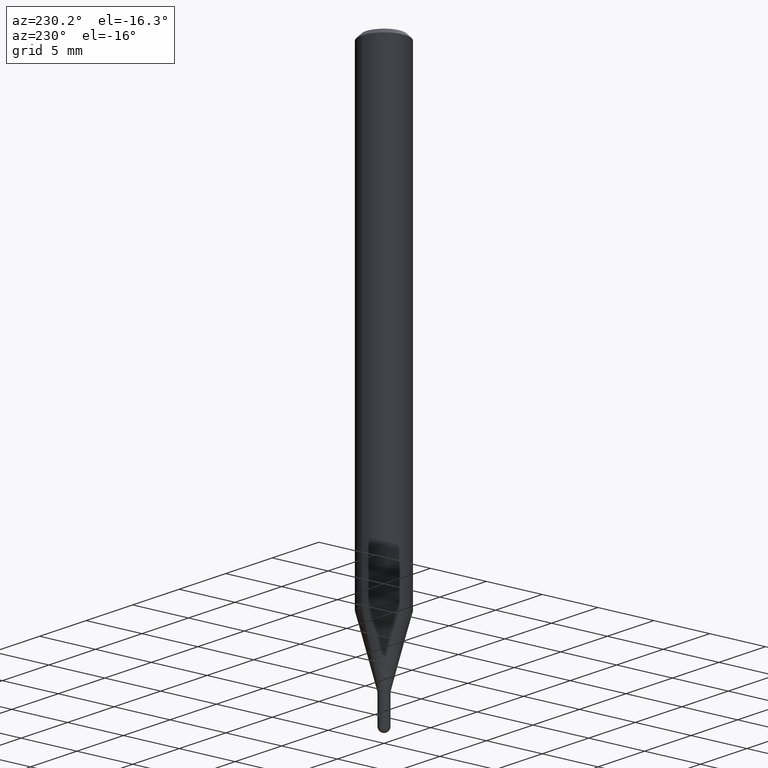
[diagram: clean part render]
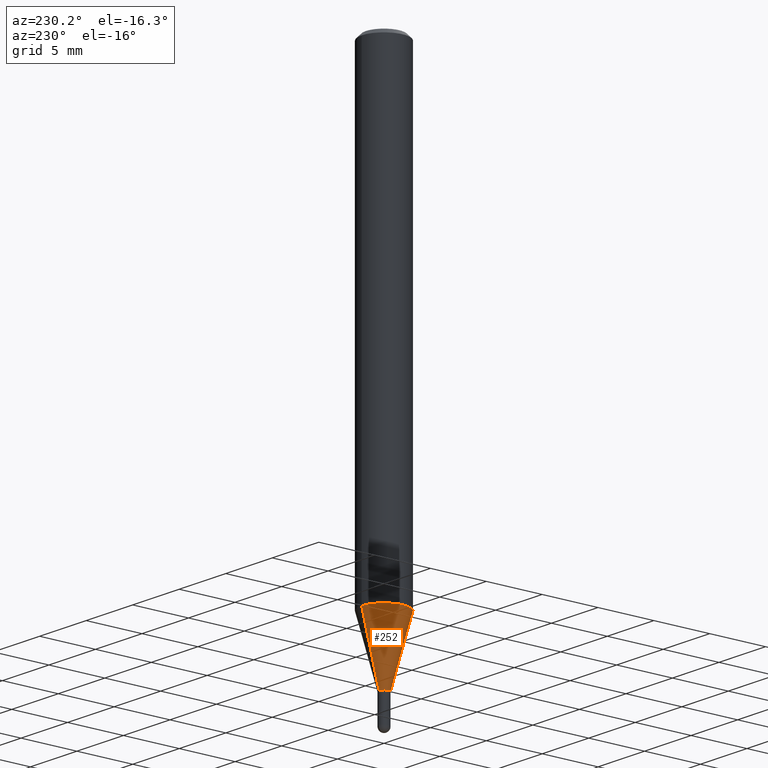
[diagram: same view with one face highlighted and labeled with its STEP entity id]
A machine part, auxiliary view. The second image highlights one B-rep face of the part: STEP entity #252.
In plain terms, the highlighted conical surface has half-angle 15 deg.
Its self-contained STEP definition (entity closure, byte-faithful):
#16 = LINE ( 'NONE', #411, #176 ) ;
#36 = DIRECTION ( 'NONE',  ( -2.445455832011205727E-29, 3.491499918598658860E-15, 1.000000000000000000 ) ) ;
#82 = CARTESIAN_POINT ( 'NONE',  ( 5.595524044111183434E-16, 0.07874999999999431066, -1.624658298197920070 ) ) ;
#105 = CARTESIAN_POINT ( 'NONE',  ( 3.973030110353503053E-29, -5.672494315908672324E-15, -1.624658298197919848 ) ) ;
#121 = CIRCLE ( 'NONE', #207, 0.01769999999999965351 ) ;
#143 = DIRECTION ( 'NONE',  ( -1.807323732225332900E-15, -0.2588190451025185745, 0.9659258262890689783 ) ) ;
#146 = AXIS2_PLACEMENT_3D ( 'NONE', #105, #307, #183 ) ;
#155 = CARTESIAN_POINT ( 'NONE',  ( 4.530206928800758471E-29, -6.468003599204014426E-15, -1.852500000000000036 ) ) ;
#168 = AXIS2_PLACEMENT_3D ( 'NONE', #434, #36, #306 ) ;
#176 = VECTOR ( 'NONE', #181, 39.37007874015748143 ) ;
#181 = DIRECTION ( 'NONE',  ( 1.839019923739603076E-15, 0.2588190451025253469, 0.9659258262890670910 ) ) ;
#183 = DIRECTION ( 'NONE',  ( -6.982962677686264344E-15, -1.000000000000000000, 3.469013325287953293E-15 ) ) ;
#187 = CARTESIAN_POINT ( 'NONE',  ( -1.235984393949991886E-16, -0.01770000000000612403, -1.852500000000000036 ) ) ;
#207 = AXIS2_PLACEMENT_3D ( 'NONE', #155, #396, #359 ) ;
#209 = EDGE_LOOP ( 'NONE', ( #443, #418, #373, #332 ) ) ;
#231 = FACE_OUTER_BOUND ( 'NONE', #209, .T. ) ;
#238 = VERTEX_POINT ( 'NONE', #82 ) ;
#242 = VERTEX_POINT ( 'NONE', #433 ) ;
#252 = ADVANCED_FACE ( 'NONE', ( #231 ), #280, .T. ) ;
#271 = VERTEX_POINT ( 'NONE', #392 ) ;
#280 = CONICAL_SURFACE ( 'NONE', #168, 0.01769999999999965351, 0.2617993877991506846 ) ;
#306 = DIRECTION ( 'NONE',  ( -6.982962677686266711E-15, -1.000000000000000000, 0.000000000000000000 ) ) ;
#307 = DIRECTION ( 'NONE',  ( -2.445455832011205727E-29, 3.491499918598658860E-15, 1.000000000000000000 ) ) ;
#311 = EDGE_CURVE ( 'NONE', #242, #271, #121, .T. ) ;
#332 = ORIENTED_EDGE ( 'NONE', *, *, #467, .F. ) ;
#359 = DIRECTION ( 'NONE',  ( -6.982962677686266711E-15, -1.000000000000000000, 0.000000000000000000 ) ) ;
#363 = CIRCLE ( 'NONE', #146, 0.07875000000000000056 ) ;
#373 = ORIENTED_EDGE ( 'NONE', *, *, #495, .T. ) ;
#388 = CARTESIAN_POINT ( 'NONE',  ( -5.499083108677539026E-16, -0.07875000000000567657, -1.624658298197919626 ) ) ;
#392 = CARTESIAN_POINT ( 'NONE',  ( -1.235984393949991886E-16, -0.01770000000000612403, -1.852500000000000036 ) ) ;
#396 = DIRECTION ( 'NONE',  ( -2.445455832011205727E-29, 3.491499918598658860E-15, 1.000000000000000000 ) ) ;
#411 = CARTESIAN_POINT ( 'NONE',  ( 1.257660642295805565E-16, 0.01769999999999318646, -1.852500000000000036 ) ) ;
#418 = ORIENTED_EDGE ( 'NONE', *, *, #311, .T. ) ;
#429 = EDGE_CURVE ( 'NONE', #242, #238, #16, .T. ) ;
#433 = CARTESIAN_POINT ( 'NONE',  ( 3.426592343203496595E-16, 0.01769999999999318646, -1.852500000000000036 ) ) ;
#434 = CARTESIAN_POINT ( 'NONE',  ( 4.530206928800758471E-29, -6.468003599204014426E-15, -1.852500000000000036 ) ) ;
#436 = VECTOR ( 'NONE', #143, 39.37007874015748143 ) ;
#443 = ORIENTED_EDGE ( 'NONE', *, *, #429, .F. ) ;
#467 = EDGE_CURVE ( 'NONE', #238, #512, #363, .T. ) ;
#495 = EDGE_CURVE ( 'NONE', #271, #512, #506, .T. ) ;
#506 = LINE ( 'NONE', #187, #436 ) ;
#512 = VERTEX_POINT ( 'NONE', #388 ) ;